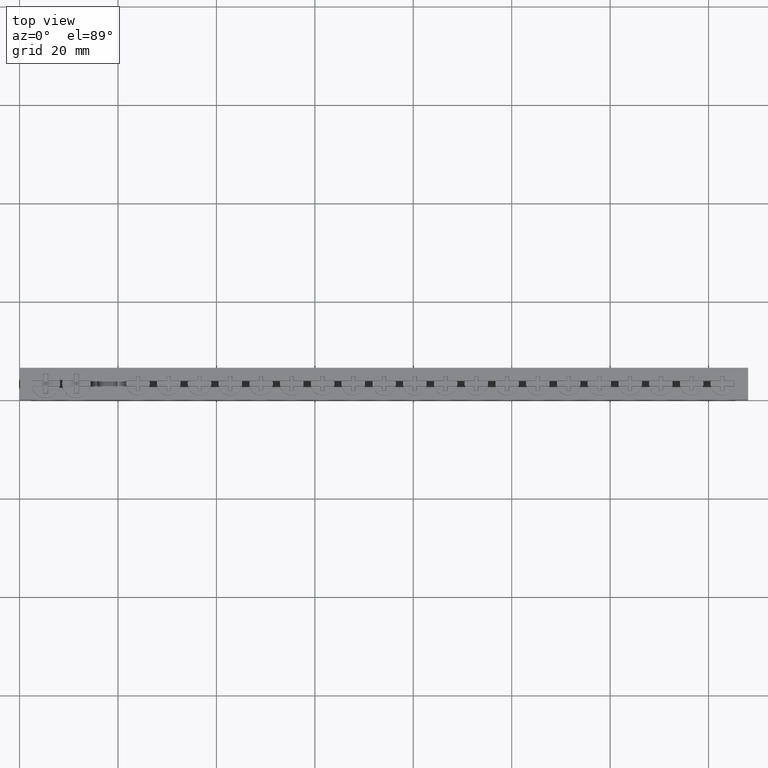
[diagram: clean part render]
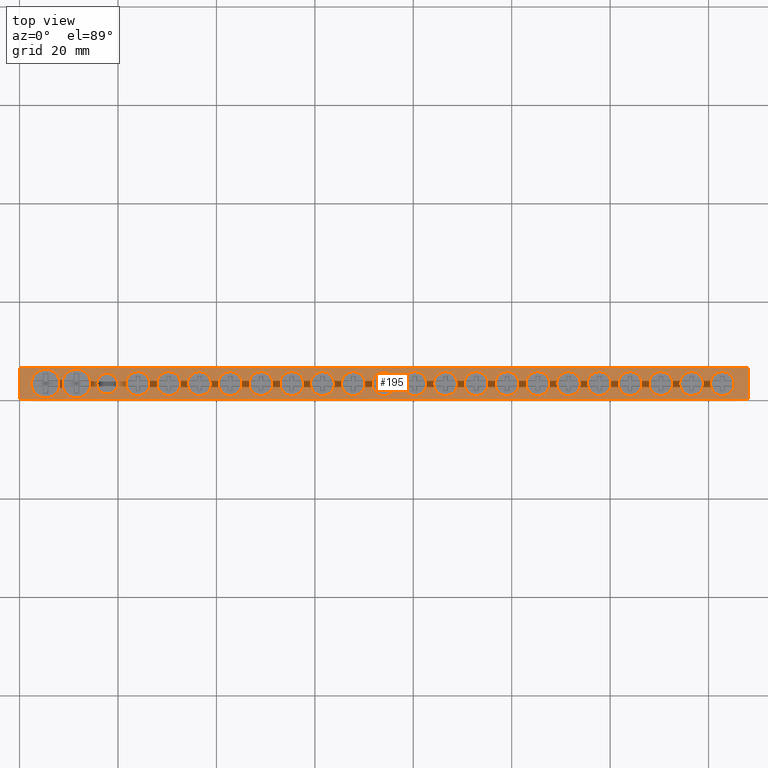
[diagram: same view with one face highlighted and labeled with its STEP entity id]
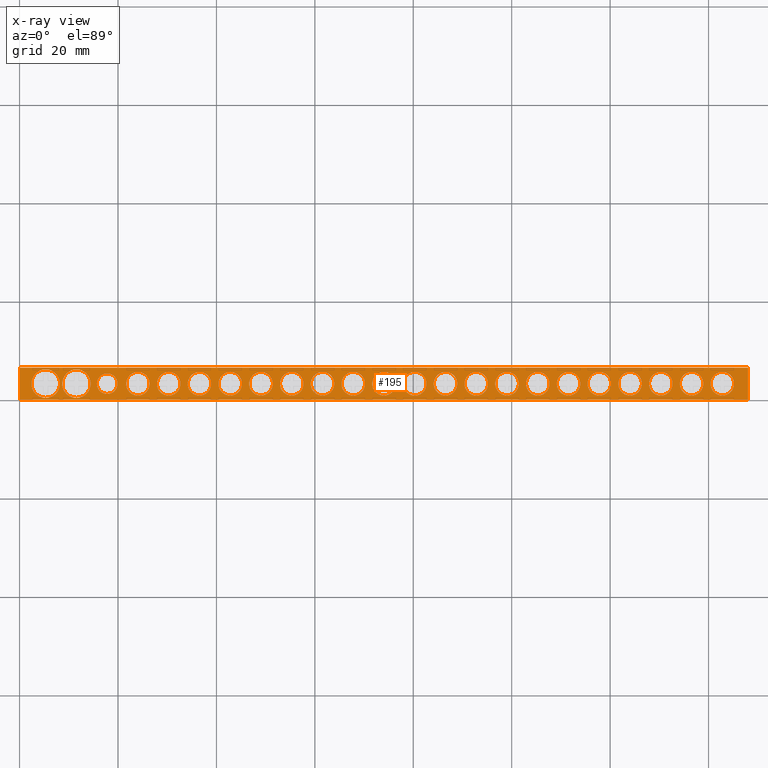
[diagram: x-ray of the same camera — body ghosted, the highlighted face saturated]
A machine part, top view. The second image highlights one B-rep face of the part: STEP entity #195.
The next image is the same camera in x-ray: the body ghosted, the highlighted face saturated — about 0% of this face is hidden behind the body in this view.
In plain terms, the highlighted planar face has unit normal (0, 0, -1).
Its self-contained STEP definition (entity closure, byte-faithful):
#92 = EDGE_CURVE ( 'NONE', #12310, #12314, #11470, .T. ) ;
#128 = EDGE_CURVE ( 'NONE', #12281, #12275, #11464, .T. ) ;
#138 = EDGE_CURVE ( 'NONE', #12275, #12310, #11525, .T. ) ;
#143 = EDGE_CURVE ( 'NONE', #12314, #12281, #11571, .T. ) ;
#195 = ADVANCED_FACE ( 'NONE', ( #11841, #11842, #11859, #11872, #11830, #11871, #11851, #11853, #11873, #11874, #11861, #11875, #11852, #11877, #11837, #11836, #11831, #11878, #11865, #11825, #11867, #11868, #11826, #11844 ), #11864, .F. ) ;
#748 = DIRECTION ( 'NONE',  ( 0.0000000000000000000, -1.000000000000000000, 0.0000000000000000000 ) ) ;
#750 = CARTESIAN_POINT ( 'NONE',  ( 124.0499999999999800, 3.249999999999996900, 9.000000000000001800 ) ) ;
#756 = DIRECTION ( 'NONE',  ( 6.245004513516505500E-017, -1.110223024625156500E-016, 1.000000000000000000 ) ) ;
#757 = DIRECTION ( 'NONE',  ( 0.0000000000000000000, -1.000000000000000000, 0.0000000000000000000 ) ) ;
#759 = DIRECTION ( 'NONE',  ( 0.0000000000000000000, -1.000000000000000000, 0.0000000000000000000 ) ) ;
#762 = DIRECTION ( 'NONE',  ( 0.0000000000000000000, -1.000000000000000000, 0.0000000000000000000 ) ) ;
#763 = CARTESIAN_POINT ( 'NONE',  ( 136.5499999999999800, 3.249999999999996900, 9.000000000000001800 ) ) ;
#771 = DIRECTION ( 'NONE',  ( 0.0000000000000000000, 6.938893903907225300E-018, 1.000000000000000000 ) ) ;
#772 = DIRECTION ( 'NONE',  ( 0.0000000000000000000, 6.938893903907225300E-018, 1.000000000000000000 ) ) ;
#773 = DIRECTION ( 'NONE',  ( 0.0000000000000000000, 6.938893903907225300E-018, 1.000000000000000000 ) ) ;
#776 = CARTESIAN_POINT ( 'NONE',  ( 11.55000000000000200, 3.249999999999999600, 9.000000000000001800 ) ) ;
#782 = CARTESIAN_POINT ( 'NONE',  ( 74.04999999999999700, 3.249999999999996400, 9.000000000000001800 ) ) ;
#787 = CARTESIAN_POINT ( 'NONE',  ( 142.7999999999999800, 3.249999999999996900, 9.000000000000001800 ) ) ;
#791 = DIRECTION ( 'NONE',  ( 0.0000000000000000000, -1.000000000000000000, 0.0000000000000000000 ) ) ;
#795 = DIRECTION ( 'NONE',  ( 0.0000000000000000000, -1.000000000000000000, 0.0000000000000000000 ) ) ;
#797 = CARTESIAN_POINT ( 'NONE',  ( 61.54999999999999000, 3.249999999999996400, 9.000000000000001800 ) ) ;
#804 = DIRECTION ( 'NONE',  ( 0.0000000000000000000, -1.000000000000000000, 0.0000000000000000000 ) ) ;
#805 = DIRECTION ( 'NONE',  ( 0.0000000000000000000, 6.938893903907225300E-018, 1.000000000000000000 ) ) ;
#807 = CARTESIAN_POINT ( 'NONE',  ( 67.79999999999996900, 3.249999999999996400, 9.000000000000001800 ) ) ;
#811 = CARTESIAN_POINT ( 'NONE',  ( 86.54999999999998300, 3.249999999999996400, 9.000000000000001800 ) ) ;
#812 = DIRECTION ( 'NONE',  ( 0.0000000000000000000, 6.938893903907225300E-018, 1.000000000000000000 ) ) ;
#813 = DIRECTION ( 'NONE',  ( 0.0000000000000000000, -1.000000000000000000, 0.0000000000000000000 ) ) ;
#817 = DIRECTION ( 'NONE',  ( 0.0000000000000000000, -1.000000000000000000, 0.0000000000000000000 ) ) ;
#819 = DIRECTION ( 'NONE',  ( 0.0000000000000000000, 6.938893903907225300E-018, 1.000000000000000000 ) ) ;
#820 = DIRECTION ( 'NONE',  ( 0.0000000000000000000, 6.938893903907225300E-018, 1.000000000000000000 ) ) ;
#822 = CARTESIAN_POINT ( 'NONE',  ( 30.29999999999997900, 3.249999999999996000, 9.000000000000001800 ) ) ;
#823 = DIRECTION ( 'NONE',  ( 0.0000000000000000000, 6.938893903907225300E-018, 1.000000000000000000 ) ) ;
#830 = DIRECTION ( 'NONE',  ( 0.0000000000000000000, 6.938893903907225300E-018, 1.000000000000000000 ) ) ;
#839 = CARTESIAN_POINT ( 'NONE',  ( 36.54999999999996900, 3.249999999999996400, 9.000000000000001800 ) ) ;
#842 = DIRECTION ( 'NONE',  ( 0.0000000000000000000, -1.000000000000000000, 0.0000000000000000000 ) ) ;
#867 = CARTESIAN_POINT ( 'NONE',  ( 130.3000000000000100, 3.249999999999996900, 9.000000000000001800 ) ) ;
#869 = DIRECTION ( 'NONE',  ( 0.0000000000000000000, -1.000000000000000000, 0.0000000000000000000 ) ) ;
#870 = CARTESIAN_POINT ( 'NONE',  ( 111.5499999999999800, 3.249999999999996900, 9.000000000000001800 ) ) ;
#872 = CARTESIAN_POINT ( 'NONE',  ( 99.04999999999996900, 3.249999999999996400, 9.000000000000001800 ) ) ;
#873 = DIRECTION ( 'NONE',  ( 0.0000000000000000000, 6.938893903907225300E-018, 1.000000000000000000 ) ) ;
#875 = DIRECTION ( 'NONE',  ( 0.0000000000000000000, -1.000000000000000000, 0.0000000000000000000 ) ) ;
#876 = DIRECTION ( 'NONE',  ( 0.0000000000000000000, -1.000000000000000000, 0.0000000000000000000 ) ) ;
#877 = DIRECTION ( 'NONE',  ( 0.0000000000000000000, -1.000000000000000000, 0.0000000000000000000 ) ) ;
#878 = CARTESIAN_POINT ( 'NONE',  ( 55.29999999999997600, 3.249999999999996400, 9.000000000000001800 ) ) ;
#879 = DIRECTION ( 'NONE',  ( 6.245004513516505500E-017, -1.110223024625156500E-016, 1.000000000000000000 ) ) ;
#882 = DIRECTION ( 'NONE',  ( 0.0000000000000000000, -1.000000000000000000, 0.0000000000000000000 ) ) ;
#883 = DIRECTION ( 'NONE',  ( 0.0000000000000000000, 6.938893903907225300E-018, 1.000000000000000000 ) ) ;
#884 = CARTESIAN_POINT ( 'NONE',  ( 5.300000000000002500, 3.249999999999999600, 9.000000000000001800 ) ) ;
#885 = DIRECTION ( 'NONE',  ( 0.0000000000000000000, 6.938893903907225300E-018, 1.000000000000000000 ) ) ;
#887 = CARTESIAN_POINT ( 'NONE',  ( 42.79999999999997600, 3.249999999999996400, 9.000000000000001800 ) ) ;
#890 = DIRECTION ( 'NONE',  ( 0.0000000000000000000, 6.938893903907225300E-018, 1.000000000000000000 ) ) ;
#893 = DIRECTION ( 'NONE',  ( 0.0000000000000000000, -1.000000000000000000, 0.0000000000000000000 ) ) ;
#894 = DIRECTION ( 'NONE',  ( 0.0000000000000000000, 6.938893903907225300E-018, 1.000000000000000000 ) ) ;
#906 = DIRECTION ( 'NONE',  ( 0.0000000000000000000, 6.938893903907225300E-018, 1.000000000000000000 ) ) ;
#914 = DIRECTION ( 'NONE',  ( 0.0000000000000000000, 6.938893903907225300E-018, 1.000000000000000000 ) ) ;
#916 = DIRECTION ( 'NONE',  ( 0.0000000000000000000, -1.000000000000000000, 0.0000000000000000000 ) ) ;
#918 = DIRECTION ( 'NONE',  ( 0.0000000000000000000, -1.000000000000000000, 0.0000000000000000000 ) ) ;
#920 = DIRECTION ( 'NONE',  ( 0.0000000000000000000, 6.938893903907225300E-018, 1.000000000000000000 ) ) ;
#922 = DIRECTION ( 'NONE',  ( 0.0000000000000000000, -1.000000000000000000, 0.0000000000000000000 ) ) ;
#924 = CARTESIAN_POINT ( 'NONE',  ( 105.3000000000000000, 3.249999999999996400, 9.000000000000001800 ) ) ;
#925 = DIRECTION ( 'NONE',  ( 0.0000000000000000000, 6.938893903907225300E-018, 1.000000000000000000 ) ) ;
#927 = CARTESIAN_POINT ( 'NONE',  ( 80.29999999999998300, 3.249999999999996400, 9.000000000000001800 ) ) ;
#930 = CARTESIAN_POINT ( 'NONE',  ( 24.04999999999997900, 3.249999999999996000, 9.000000000000001800 ) ) ;
#933 = DIRECTION ( 'NONE',  ( 0.0000000000000000000, -1.000000000000000000, 0.0000000000000000000 ) ) ;
#936 = CARTESIAN_POINT ( 'NONE',  ( 117.7999999999999800, 3.249999999999996900, 9.000000000000001800 ) ) ;
#943 = DIRECTION ( 'NONE',  ( 0.0000000000000000000, -1.000000000000000000, 0.0000000000000000000 ) ) ;
#944 = DIRECTION ( 'NONE',  ( 0.0000000000000000000, 6.938893903907225300E-018, 1.000000000000000000 ) ) ;
#972 = CARTESIAN_POINT ( 'NONE',  ( 49.04999999999998300, 3.249999999999996400, 9.000000000000001800 ) ) ;
#1075 = CARTESIAN_POINT ( 'NONE',  ( 92.79999999999998300, 3.249999999999996400, 9.000000000000001800 ) ) ;
#1084 = DIRECTION ( 'NONE',  ( 0.0000000000000000000, -1.000000000000000000, 0.0000000000000000000 ) ) ;
#1095 = DIRECTION ( 'NONE',  ( 0.0000000000000000000, 6.938893903907225300E-018, 1.000000000000000000 ) ) ;
#1097 = CARTESIAN_POINT ( 'NONE',  ( 17.80000000000000100, 3.249999999999999100, 9.000000000000001800 ) ) ;
#1103 = DIRECTION ( 'NONE',  ( 0.0000000000000000000, 0.0000000000000000000, 1.000000000000000000 ) ) ;
#1114 = DIRECTION ( 'NONE',  ( 1.000000000000000000, 0.0000000000000000000, 0.0000000000000000000 ) ) ;
#1461 = CARTESIAN_POINT ( 'NONE',  ( 49.04999999999998300, 3.249999999999996400, 9.000000000000001800 ) ) ;
#1462 = DIRECTION ( 'NONE',  ( 0.0000000000000000000, -1.000000000000000000, 0.0000000000000000000 ) ) ;
#1474 = DIRECTION ( 'NONE',  ( 0.0000000000000000000, 6.938893903907225300E-018, 1.000000000000000000 ) ) ;
#1501 = DIRECTION ( 'NONE',  ( 0.0000000000000000000, -1.000000000000000000, 0.0000000000000000000 ) ) ;
#1513 = CARTESIAN_POINT ( 'NONE',  ( 55.29999999999997600, 3.249999999999996400, 9.000000000000001800 ) ) ;
#1518 = DIRECTION ( 'NONE',  ( 0.0000000000000000000, -1.000000000000000000, 0.0000000000000000000 ) ) ;
#1531 = CARTESIAN_POINT ( 'NONE',  ( 92.79999999999998300, 3.249999999999996400, 9.000000000000001800 ) ) ;
#1544 = DIRECTION ( 'NONE',  ( 0.0000000000000000000, 6.938893903907225300E-018, 1.000000000000000000 ) ) ;
#1549 = DIRECTION ( 'NONE',  ( 0.0000000000000000000, 6.938893903907225300E-018, 1.000000000000000000 ) ) ;
#1565 = CARTESIAN_POINT ( 'NONE',  ( 148.0500000000000100, 6.500000000000000000, 9.000000000000001800 ) ) ;
#1568 = DIRECTION ( 'NONE',  ( 0.0000000000000000000, 6.938893903907225300E-018, 1.000000000000000000 ) ) ;
#1571 = CARTESIAN_POINT ( 'NONE',  ( 67.79999999999996900, 3.249999999999996400, 9.000000000000001800 ) ) ;
#1580 = DIRECTION ( 'NONE',  ( 0.0000000000000000000, 6.938893903907225300E-018, 1.000000000000000000 ) ) ;
#1582 = DIRECTION ( 'NONE',  ( 0.0000000000000000000, -1.000000000000000000, 0.0000000000000000000 ) ) ;
#1586 = CARTESIAN_POINT ( 'NONE',  ( 0.05000000000000000300, 6.499999999999999100, 9.000000000000001800 ) ) ;
#1588 = CARTESIAN_POINT ( 'NONE',  ( 61.54999999999999000, 3.249999999999996400, 9.000000000000001800 ) ) ;
#1589 = DIRECTION ( 'NONE',  ( 0.0000000000000000000, -1.000000000000000000, 0.0000000000000000000 ) ) ;
#1609 = CARTESIAN_POINT ( 'NONE',  ( 130.3000000000000100, 0.8499999999999965400, 9.000000000000001800 ) ) ;
#1615 = CARTESIAN_POINT ( 'NONE',  ( 99.04999999999996900, 5.649999999999996800, 9.000000000000001800 ) ) ;
#1622 = CARTESIAN_POINT ( 'NONE',  ( 117.7999999999999800, 0.8499999999999965400, 9.000000000000001800 ) ) ;
#1627 = CARTESIAN_POINT ( 'NONE',  ( 99.04999999999996900, 0.8499999999999962000, 9.000000000000001800 ) ) ;
#1628 = CARTESIAN_POINT ( 'NONE',  ( 136.5499999999999800, 0.8499999999999965400, 9.000000000000001800 ) ) ;
#1637 = CARTESIAN_POINT ( 'NONE',  ( 148.0500000000000100, 0.0000000000000000000, 9.000000000000001800 ) ) ;
#1640 = CARTESIAN_POINT ( 'NONE',  ( 92.79999999999998300, 5.649999999999996800, 9.000000000000001800 ) ) ;
#1648 = CARTESIAN_POINT ( 'NONE',  ( 0.05000000000000000300, 0.0000000000000000000, 9.000000000000001800 ) ) ;
#1653 = CARTESIAN_POINT ( 'NONE',  ( 124.0499999999999800, 5.649999999999996800, 9.000000000000001800 ) ) ;
#1654 = CARTESIAN_POINT ( 'NONE',  ( 105.3000000000000000, 0.8499999999999962000, 9.000000000000001800 ) ) ;
#1664 = CARTESIAN_POINT ( 'NONE',  ( 124.0499999999999800, 0.8499999999999965400, 9.000000000000001800 ) ) ;
#1665 = CARTESIAN_POINT ( 'NONE',  ( 111.5499999999999800, 5.649999999999996800, 9.000000000000001800 ) ) ;
#1668 = CARTESIAN_POINT ( 'NONE',  ( 117.7999999999999800, 5.649999999999996800, 9.000000000000001800 ) ) ;
#1687 = CARTESIAN_POINT ( 'NONE',  ( 105.3000000000000000, 5.649999999999996800, 9.000000000000001800 ) ) ;
#1703 = CARTESIAN_POINT ( 'NONE',  ( 142.7999999999999800, 0.8499999999999965400, 9.000000000000001800 ) ) ;
#1706 = CARTESIAN_POINT ( 'NONE',  ( 15.69999999999999900, 3.249999999999999600, 9.000000000000001800 ) ) ;
#1713 = CARTESIAN_POINT ( 'NONE',  ( 130.3000000000000100, 5.649999999999996800, 9.000000000000001800 ) ) ;
#1716 = CARTESIAN_POINT ( 'NONE',  ( 111.5499999999999800, 0.8499999999999965400, 9.000000000000001800 ) ) ;
#1721 = CARTESIAN_POINT ( 'NONE',  ( 136.5499999999999800, 5.649999999999996800, 9.000000000000001800 ) ) ;
#1724 = CARTESIAN_POINT ( 'NONE',  ( 19.90000000000000200, 3.249999999999999100, 9.000000000000001800 ) ) ;
#1726 = CARTESIAN_POINT ( 'NONE',  ( 92.79999999999998300, 0.8499999999999962000, 9.000000000000001800 ) ) ;
#1792 = CARTESIAN_POINT ( 'NONE',  ( 142.7999999999999800, 5.649999999999996800, 9.000000000000001800 ) ) ;
#2612 = EDGE_LOOP ( 'NONE', ( #7861, #7875 ) ) ;
#2613 = EDGE_LOOP ( 'NONE', ( #7825, #7790 ) ) ;
#2617 = EDGE_LOOP ( 'NONE', ( #7863, #7756 ) ) ;
#2619 = EDGE_LOOP ( 'NONE', ( #7840, #7814 ) ) ;
#2620 = EDGE_LOOP ( 'NONE', ( #7759, #7767 ) ) ;
#2624 = EDGE_LOOP ( 'NONE', ( #7811, #7799 ) ) ;
#2629 = EDGE_LOOP ( 'NONE', ( #7804, #7793 ) ) ;
#2635 = EDGE_LOOP ( 'NONE', ( #7770, #7784 ) ) ;
#2651 = EDGE_LOOP ( 'NONE', ( #9114, #7800 ) ) ;
#2664 = EDGE_LOOP ( 'NONE', ( #9100, #9094 ) ) ;
#2666 = EDGE_LOOP ( 'NONE', ( #9104, #7791 ) ) ;
#2672 = EDGE_LOOP ( 'NONE', ( #7751, #7766 ) ) ;
#2675 = EDGE_LOOP ( 'NONE', ( #7860, #7850 ) ) ;
#2684 = EDGE_LOOP ( 'NONE', ( #7762, #7782 ) ) ;
#2688 = EDGE_LOOP ( 'NONE', ( #9091, #7797 ) ) ;
#2706 = EDGE_LOOP ( 'NONE', ( #7829, #7801 ) ) ;
#2707 = EDGE_LOOP ( 'NONE', ( #7877, #7831 ) ) ;
#2710 = EDGE_LOOP ( 'NONE', ( #7803, #7763 ) ) ;
#2711 = EDGE_LOOP ( 'NONE', ( #7777, #7778 ) ) ;
#2712 = EDGE_LOOP ( 'NONE', ( #7776, #7764 ) ) ;
#2718 = EDGE_LOOP ( 'NONE', ( #7765, #7806 ) ) ;
#2719 = EDGE_LOOP ( 'NONE', ( #7856, #7873, #7854, #7788 ) ) ;
#2720 = EDGE_LOOP ( 'NONE', ( #7802, #7851 ) ) ;
#2725 = EDGE_LOOP ( 'NONE', ( #7813, #9099 ) ) ;
#3057 = EDGE_CURVE ( 'NONE', #8642, #8627, #7369, .T. ) ;
#3063 = EDGE_CURVE ( 'NONE', #8544, #8638, #7417, .T. ) ;
#3955 = CARTESIAN_POINT ( 'NONE',  ( 5.300000000000002500, 3.249999999999999600, 9.000000000000001800 ) ) ;
#3964 = DIRECTION ( 'NONE',  ( 0.0000000000000000000, -1.000000000000000000, 0.0000000000000000000 ) ) ;
#3977 = DIRECTION ( 'NONE',  ( 6.245004513516505500E-017, -1.110223024625156500E-016, 1.000000000000000000 ) ) ;
#3979 = DIRECTION ( 'NONE',  ( 0.0000000000000000000, -1.000000000000000000, 0.0000000000000000000 ) ) ;
#3986 = DIRECTION ( 'NONE',  ( 0.0000000000000000000, 6.938893903907225300E-018, 1.000000000000000000 ) ) ;
#4000 = CARTESIAN_POINT ( 'NONE',  ( 24.04999999999997900, 3.249999999999996000, 9.000000000000001800 ) ) ;
#4858 = DIRECTION ( 'NONE',  ( 0.0000000000000000000, -1.000000000000000000, 0.0000000000000000000 ) ) ;
#4860 = DIRECTION ( 'NONE',  ( 0.0000000000000000000, 6.938893903907225300E-018, 1.000000000000000000 ) ) ;
#4869 = DIRECTION ( 'NONE',  ( 0.0000000000000000000, 6.938893903907225300E-018, 1.000000000000000000 ) ) ;
#4877 = DIRECTION ( 'NONE',  ( 0.0000000000000000000, -1.000000000000000000, 0.0000000000000000000 ) ) ;
#4888 = CARTESIAN_POINT ( 'NONE',  ( 30.29999999999997900, 3.249999999999996000, 9.000000000000001800 ) ) ;
#4892 = CARTESIAN_POINT ( 'NONE',  ( 36.54999999999996900, 3.249999999999996400, 9.000000000000001800 ) ) ;
#4905 = CARTESIAN_POINT ( 'NONE',  ( 17.80000000000000100, 3.249999999999999100, 9.000000000000001800 ) ) ;
#4911 = DIRECTION ( 'NONE',  ( 1.000000000000000000, 0.0000000000000000000, 0.0000000000000000000 ) ) ;
#4945 = DIRECTION ( 'NONE',  ( 0.0000000000000000000, 0.0000000000000000000, 1.000000000000000000 ) ) ;
#5106 = CIRCLE ( 'NONE', #5119, 2.400000000000000400 ) ;
#5119 = AXIS2_PLACEMENT_3D ( 'NONE', #1075, #1095, #1084 ) ;
#5134 = CIRCLE ( 'NONE', #5135, 2.100000000000001000 ) ;
#5135 = AXIS2_PLACEMENT_3D ( 'NONE', #1097, #1103, #1114 ) ;
#5167 = AXIS2_PLACEMENT_3D ( 'NONE', #4000, #3986, #3979 ) ;
#5178 = CIRCLE ( 'NONE', #5204, 2.900000000000000400 ) ;
#5179 = CIRCLE ( 'NONE', #5167, 2.400000000000000400 ) ;
#5204 = AXIS2_PLACEMENT_3D ( 'NONE', #3955, #3977, #3964 ) ;
#5534 = CIRCLE ( 'NONE', #5565, 2.400000000000000400 ) ;
#5537 = CIRCLE ( 'NONE', #5544, 2.400000000000000400 ) ;
#5542 = CIRCLE ( 'NONE', #5555, 2.400000000000000400 ) ;
#5544 = AXIS2_PLACEMENT_3D ( 'NONE', #1461, #1474, #1462 ) ;
#5545 = AXIS2_PLACEMENT_3D ( 'NONE', #1588, #1580, #1582 ) ;
#5551 = CIRCLE ( 'NONE', #5563, 2.400000000000000400 ) ;
#5555 = AXIS2_PLACEMENT_3D ( 'NONE', #1531, #1549, #1501 ) ;
#5560 = CIRCLE ( 'NONE', #5545, 2.400000000000000400 ) ;
#5563 = AXIS2_PLACEMENT_3D ( 'NONE', #1513, #1544, #1518 ) ;
#5565 = AXIS2_PLACEMENT_3D ( 'NONE', #1571, #1568, #1589 ) ;
#5998 = AXIS2_PLACEMENT_3D ( 'NONE', #884, #879, #876 ) ;
#5999 = CIRCLE ( 'NONE', #6041, 2.400000000000000400 ) ;
#6000 = CIRCLE ( 'NONE', #6009, 2.400000000000000400 ) ;
#6002 = CIRCLE ( 'NONE', #5998, 2.900000000000000400 ) ;
#6004 = AXIS2_PLACEMENT_3D ( 'NONE', #867, #873, #893 ) ;
#6005 = CIRCLE ( 'NONE', #6047, 2.400000000000000400 ) ;
#6006 = AXIS2_PLACEMENT_3D ( 'NONE', #936, #914, #933 ) ;
#6009 = AXIS2_PLACEMENT_3D ( 'NONE', #887, #885, #877 ) ;
#6014 = CIRCLE ( 'NONE', #6046, 2.400000000000000400 ) ;
#6023 = CIRCLE ( 'NONE', #6006, 2.400000000000000400 ) ;
#6025 = AXIS2_PLACEMENT_3D ( 'NONE', #927, #920, #922 ) ;
#6026 = CIRCLE ( 'NONE', #6028, 2.400000000000000400 ) ;
#6027 = CIRCLE ( 'NONE', #6004, 2.400000000000000400 ) ;
#6028 = AXIS2_PLACEMENT_3D ( 'NONE', #930, #906, #918 ) ;
#6039 = CIRCLE ( 'NONE', #6090, 2.400000000000000400 ) ;
#6041 = AXIS2_PLACEMENT_3D ( 'NONE', #870, #890, #869 ) ;
#6043 = AXIS2_PLACEMENT_3D ( 'NONE', #872, #894, #875 ) ;
#6044 = CIRCLE ( 'NONE', #6043, 2.400000000000000400 ) ;
#6045 = CIRCLE ( 'NONE', #6025, 2.400000000000000400 ) ;
#6046 = AXIS2_PLACEMENT_3D ( 'NONE', #839, #830, #842 ) ;
#6047 = AXIS2_PLACEMENT_3D ( 'NONE', #878, #883, #882 ) ;
#6051 = CIRCLE ( 'NONE', #6052, 2.400000000000000400 ) ;
#6052 = AXIS2_PLACEMENT_3D ( 'NONE', #924, #925, #916 ) ;
#6090 = AXIS2_PLACEMENT_3D ( 'NONE', #972, #944, #943 ) ;
#6471 = AXIS2_PLACEMENT_3D ( 'NONE', #822, #805, #791 ) ;
#6476 = CIRCLE ( 'NONE', #6521, 2.400000000000000400 ) ;
#6483 = AXIS2_PLACEMENT_3D ( 'NONE', #807, #823, #817 ) ;
#6484 = AXIS2_PLACEMENT_3D ( 'NONE', #782, #771, #748 ) ;
#6489 = CIRCLE ( 'NONE', #6471, 2.400000000000000400 ) ;
#6490 = CIRCLE ( 'NONE', #6511, 2.400000000000000400 ) ;
#6491 = CIRCLE ( 'NONE', #6484, 2.400000000000000400 ) ;
#6495 = CIRCLE ( 'NONE', #6496, 2.400000000000000400 ) ;
#6496 = AXIS2_PLACEMENT_3D ( 'NONE', #811, #812, #813 ) ;
#6505 = CIRCLE ( 'NONE', #6525, 2.900000000000000400 ) ;
#6506 = CIRCLE ( 'NONE', #6509, 2.400000000000000400 ) ;
#6509 = AXIS2_PLACEMENT_3D ( 'NONE', #787, #819, #795 ) ;
#6511 = AXIS2_PLACEMENT_3D ( 'NONE', #763, #773, #759 ) ;
#6515 = AXIS2_PLACEMENT_3D ( 'NONE', #797, #820, #804 ) ;
#6519 = CIRCLE ( 'NONE', #6515, 2.400000000000000400 ) ;
#6521 = AXIS2_PLACEMENT_3D ( 'NONE', #750, #772, #762 ) ;
#6524 = CIRCLE ( 'NONE', #6483, 2.400000000000000400 ) ;
#6525 = AXIS2_PLACEMENT_3D ( 'NONE', #776, #756, #757 ) ;
#6542 = EDGE_CURVE ( 'NONE', #12392, #12390, #7420, .T. ) ;
#6595 = EDGE_CURVE ( 'NONE', #12345, #12339, #7463, .T. ) ;
#6596 = EDGE_CURVE ( 'NONE', #12369, #12332, #7467, .T. ) ;
#6600 = EDGE_CURVE ( 'NONE', #12309, #12362, #7494, .T. ) ;
#6603 = EDGE_CURVE ( 'NONE', #12335, #12320, #7502, .T. ) ;
#6606 = EDGE_CURVE ( 'NONE', #12342, #12396, #7484, .T. ) ;
#6627 = EDGE_CURVE ( 'NONE', #12330, #12307, #7352, .T. ) ;
#6628 = EDGE_CURVE ( 'NONE', #12336, #12360, #7410, .T. ) ;
#6652 = EDGE_CURVE ( 'NONE', #12378, #12412, #13613, .T. ) ;
#6674 = EDGE_CURVE ( 'NONE', #8640, #8539, #13681, .T. ) ;
#6698 = DIRECTION ( 'NONE',  ( 0.0000000000000000000, 6.938893903907225300E-018, 1.000000000000000000 ) ) ;
#6700 = CARTESIAN_POINT ( 'NONE',  ( 99.04999999999996900, 3.249999999999996400, 9.000000000000001800 ) ) ;
#6703 = DIRECTION ( 'NONE',  ( 0.0000000000000000000, -1.000000000000000000, 0.0000000000000000000 ) ) ;
#6704 = DIRECTION ( 'NONE',  ( 0.0000000000000000000, -1.000000000000000000, 0.0000000000000000000 ) ) ;
#6706 = DIRECTION ( 'NONE',  ( 0.0000000000000000000, 6.938893903907225300E-018, 1.000000000000000000 ) ) ;
#6708 = CARTESIAN_POINT ( 'NONE',  ( 111.5499999999999800, 3.249999999999996900, 9.000000000000001800 ) ) ;
#6717 = DIRECTION ( 'NONE',  ( 0.0000000000000000000, 6.938893903907225300E-018, 1.000000000000000000 ) ) ;
#6722 = DIRECTION ( 'NONE',  ( 0.0000000000000000000, 6.938893903907225300E-018, 1.000000000000000000 ) ) ;
#6723 = DIRECTION ( 'NONE',  ( 0.0000000000000000000, -1.000000000000000000, 0.0000000000000000000 ) ) ;
#6728 = CARTESIAN_POINT ( 'NONE',  ( 117.7999999999999800, 3.249999999999996900, 9.000000000000001800 ) ) ;
#6730 = DIRECTION ( 'NONE',  ( 0.0000000000000000000, -1.000000000000000000, 0.0000000000000000000 ) ) ;
#6731 = CARTESIAN_POINT ( 'NONE',  ( 136.5499999999999800, 3.249999999999996900, 9.000000000000001800 ) ) ;
#6733 = DIRECTION ( 'NONE',  ( 0.0000000000000000000, -1.000000000000000000, 0.0000000000000000000 ) ) ;
#6741 = CARTESIAN_POINT ( 'NONE',  ( 105.3000000000000000, 3.249999999999996400, 9.000000000000001800 ) ) ;
#6742 = DIRECTION ( 'NONE',  ( 0.0000000000000000000, 6.938893903907225300E-018, 1.000000000000000000 ) ) ;
#6810 = DIRECTION ( 'NONE',  ( 0.0000000000000000000, 6.938893903907225300E-018, 1.000000000000000000 ) ) ;
#6813 = DIRECTION ( 'NONE',  ( 0.0000000000000000000, -1.000000000000000000, 0.0000000000000000000 ) ) ;
#6824 = DIRECTION ( 'NONE',  ( 0.0000000000000000000, 6.938893903907225300E-018, 1.000000000000000000 ) ) ;
#6830 = CARTESIAN_POINT ( 'NONE',  ( 130.3000000000000100, 3.249999999999996900, 9.000000000000001800 ) ) ;
#6833 = CARTESIAN_POINT ( 'NONE',  ( 124.0499999999999800, 3.249999999999996900, 9.000000000000001800 ) ) ;
#6835 = DIRECTION ( 'NONE',  ( 0.0000000000000000000, -1.000000000000000000, 0.0000000000000000000 ) ) ;
#6887 = CARTESIAN_POINT ( 'NONE',  ( 142.7999999999999800, 3.249999999999996900, 9.000000000000001800 ) ) ;
#6888 = DIRECTION ( 'NONE',  ( 0.0000000000000000000, -1.000000000000000000, 0.0000000000000000000 ) ) ;
#6915 = DIRECTION ( 'NONE',  ( 0.0000000000000000000, 6.938893903907225300E-018, 1.000000000000000000 ) ) ;
#6940 = DIRECTION ( 'NONE',  ( 6.245004513516505500E-017, -1.110223024625156500E-016, 1.000000000000000000 ) ) ;
#6942 = DIRECTION ( 'NONE',  ( 0.0000000000000000000, -1.000000000000000000, 0.0000000000000000000 ) ) ;
#6959 = CARTESIAN_POINT ( 'NONE',  ( 11.55000000000000200, 3.249999999999999600, 9.000000000000001800 ) ) ;
#6970 = CARTESIAN_POINT ( 'NONE',  ( 80.29999999999998300, 3.249999999999996400, 9.000000000000001800 ) ) ;
#6971 = DIRECTION ( 'NONE',  ( 0.0000000000000000000, 6.938893903907225300E-018, 1.000000000000000000 ) ) ;
#6980 = DIRECTION ( 'NONE',  ( 0.0000000000000000000, -1.000000000000000000, 0.0000000000000000000 ) ) ;
#7050 = DIRECTION ( 'NONE',  ( 0.0000000000000000000, -1.000000000000000000, 0.0000000000000000000 ) ) ;
#7053 = CARTESIAN_POINT ( 'NONE',  ( 74.04999999999999700, 3.249999999999996400, 9.000000000000001800 ) ) ;
#7062 = DIRECTION ( 'NONE',  ( 0.0000000000000000000, 6.938893903907225300E-018, 1.000000000000000000 ) ) ;
#7108 = DIRECTION ( 'NONE',  ( 0.0000000000000000000, -1.000000000000000000, 0.0000000000000000000 ) ) ;
#7128 = DIRECTION ( 'NONE',  ( 0.0000000000000000000, 6.938893903907225300E-018, 1.000000000000000000 ) ) ;
#7133 = CARTESIAN_POINT ( 'NONE',  ( 86.54999999999998300, 3.249999999999996400, 9.000000000000001800 ) ) ;
#7213 = AXIS2_PLACEMENT_3D ( 'NONE', #11838, #11827, #11843 ) ;
#7352 = CIRCLE ( 'NONE', #7356, 2.400000000000000400 ) ;
#7356 = AXIS2_PLACEMENT_3D ( 'NONE', #6833, #6824, #6835 ) ;
#7369 = CIRCLE ( 'NONE', #7416, 2.400000000000000400 ) ;
#7405 = AXIS2_PLACEMENT_3D ( 'NONE', #4905, #4945, #4911 ) ;
#7410 = CIRCLE ( 'NONE', #7495, 2.400000000000000400 ) ;
#7415 = AXIS2_PLACEMENT_3D ( 'NONE', #4888, #4869, #4877 ) ;
#7416 = AXIS2_PLACEMENT_3D ( 'NONE', #4892, #4860, #4858 ) ;
#7417 = CIRCLE ( 'NONE', #7415, 2.400000000000000400 ) ;
#7420 = CIRCLE ( 'NONE', #7405, 2.100000000000001000 ) ;
#7463 = CIRCLE ( 'NONE', #7491, 2.400000000000000400 ) ;
#7465 = AXIS2_PLACEMENT_3D ( 'NONE', #6741, #6722, #6733 ) ;
#7467 = CIRCLE ( 'NONE', #7505, 2.400000000000000400 ) ;
#7484 = CIRCLE ( 'NONE', #7496, 2.400000000000000400 ) ;
#7491 = AXIS2_PLACEMENT_3D ( 'NONE', #6700, #6706, #6704 ) ;
#7494 = CIRCLE ( 'NONE', #7465, 2.400000000000000400 ) ;
#7495 = AXIS2_PLACEMENT_3D ( 'NONE', #6830, #6810, #6813 ) ;
#7496 = AXIS2_PLACEMENT_3D ( 'NONE', #6731, #6742, #6730 ) ;
#7497 = AXIS2_PLACEMENT_3D ( 'NONE', #6728, #6717, #6723 ) ;
#7502 = CIRCLE ( 'NONE', #7497, 2.400000000000000400 ) ;
#7505 = AXIS2_PLACEMENT_3D ( 'NONE', #6708, #6698, #6703 ) ;
#7531 = VECTOR ( 'NONE', #11545, 1000.000000000000000 ) ;
#7566 = VECTOR ( 'NONE', #11450, 1000.000000000000000 ) ;
#7567 = VECTOR ( 'NONE', #11522, 1000.000000000000000 ) ;
#7585 = VECTOR ( 'NONE', #11496, 1000.000000000000000 ) ;
#7599 = EDGE_CURVE ( 'NONE', #8613, #8679, #13748, .T. ) ;
#7614 = EDGE_CURVE ( 'NONE', #8612, #8581, #13709, .T. ) ;
#7628 = EDGE_CURVE ( 'NONE', #8629, #8619, #13809, .T. ) ;
#7652 = EDGE_CURVE ( 'NONE', #8608, #8630, #13757, .T. ) ;
#7751 = ORIENTED_EDGE ( 'NONE', *, *, #7652, .F. ) ;
#7756 = ORIENTED_EDGE ( 'NONE', *, *, #10201, .F. ) ;
#7759 = ORIENTED_EDGE ( 'NONE', *, *, #6595, .F. ) ;
#7762 = ORIENTED_EDGE ( 'NONE', *, *, #3057, .F. ) ;
#7763 = ORIENTED_EDGE ( 'NONE', *, *, #10248, .F. ) ;
#7764 = ORIENTED_EDGE ( 'NONE', *, *, #10221, .F. ) ;
#7765 = ORIENTED_EDGE ( 'NONE', *, *, #11244, .F. ) ;
#7766 = ORIENTED_EDGE ( 'NONE', *, *, #10241, .F. ) ;
#7767 = ORIENTED_EDGE ( 'NONE', *, *, #10244, .F. ) ;
#7770 = ORIENTED_EDGE ( 'NONE', *, *, #11232, .F. ) ;
#7776 = ORIENTED_EDGE ( 'NONE', *, *, #11246, .F. ) ;
#7777 = ORIENTED_EDGE ( 'NONE', *, *, #11250, .F. ) ;
#7778 = ORIENTED_EDGE ( 'NONE', *, *, #10213, .F. ) ;
#7782 = ORIENTED_EDGE ( 'NONE', *, *, #10235, .F. ) ;
#7784 = ORIENTED_EDGE ( 'NONE', *, *, #10264, .F. ) ;
#7788 = ORIENTED_EDGE ( 'NONE', *, *, #138, .T. ) ;
#7790 = ORIENTED_EDGE ( 'NONE', *, *, #10256, .F. ) ;
#7791 = ORIENTED_EDGE ( 'NONE', *, *, #10207, .F. ) ;
#7793 = ORIENTED_EDGE ( 'NONE', *, *, #10255, .F. ) ;
#7797 = ORIENTED_EDGE ( 'NONE', *, *, #10254, .F. ) ;
#7799 = ORIENTED_EDGE ( 'NONE', *, *, #10238, .F. ) ;
#7800 = ORIENTED_EDGE ( 'NONE', *, *, #10212, .F. ) ;
#7801 = ORIENTED_EDGE ( 'NONE', *, *, #10249, .F. ) ;
#7802 = ORIENTED_EDGE ( 'NONE', *, *, #10305, .F. ) ;
#7803 = ORIENTED_EDGE ( 'NONE', *, *, #11240, .F. ) ;
#7804 = ORIENTED_EDGE ( 'NONE', *, *, #10351, .F. ) ;
#7806 = ORIENTED_EDGE ( 'NONE', *, *, #10306, .F. ) ;
#7811 = ORIENTED_EDGE ( 'NONE', *, *, #10352, .F. ) ;
#7813 = ORIENTED_EDGE ( 'NONE', *, *, #7614, .F. ) ;
#7814 = ORIENTED_EDGE ( 'NONE', *, *, #10240, .F. ) ;
#7825 = ORIENTED_EDGE ( 'NONE', *, *, #6600, .F. ) ;
#7829 = ORIENTED_EDGE ( 'NONE', *, *, #6603, .F. ) ;
#7831 = ORIENTED_EDGE ( 'NONE', *, *, #10243, .F. ) ;
#7840 = ORIENTED_EDGE ( 'NONE', *, *, #6628, .F. ) ;
#7850 = ORIENTED_EDGE ( 'NONE', *, *, #10219, .F. ) ;
#7851 = ORIENTED_EDGE ( 'NONE', *, *, #6542, .F. ) ;
#7854 = ORIENTED_EDGE ( 'NONE', *, *, #128, .T. ) ;
#7856 = ORIENTED_EDGE ( 'NONE', *, *, #92, .T. ) ;
#7860 = ORIENTED_EDGE ( 'NONE', *, *, #6652, .F. ) ;
#7861 = ORIENTED_EDGE ( 'NONE', *, *, #6606, .F. ) ;
#7863 = ORIENTED_EDGE ( 'NONE', *, *, #6627, .F. ) ;
#7873 = ORIENTED_EDGE ( 'NONE', *, *, #143, .T. ) ;
#7875 = ORIENTED_EDGE ( 'NONE', *, *, #10204, .F. ) ;
#7877 = ORIENTED_EDGE ( 'NONE', *, *, #6596, .F. ) ;
#8518 = VERTEX_POINT ( 'NONE', #10763 ) ;
#8539 = VERTEX_POINT ( 'NONE', #10721 ) ;
#8544 = VERTEX_POINT ( 'NONE', #10731 ) ;
#8550 = VERTEX_POINT ( 'NONE', #10711 ) ;
#8581 = VERTEX_POINT ( 'NONE', #9355 ) ;
#8584 = VERTEX_POINT ( 'NONE', #9358 ) ;
#8596 = VERTEX_POINT ( 'NONE', #9402 ) ;
#8605 = VERTEX_POINT ( 'NONE', #9414 ) ;
#8607 = VERTEX_POINT ( 'NONE', #9415 ) ;
#8608 = VERTEX_POINT ( 'NONE', #9386 ) ;
#8611 = VERTEX_POINT ( 'NONE', #9419 ) ;
#8612 = VERTEX_POINT ( 'NONE', #9420 ) ;
#8613 = VERTEX_POINT ( 'NONE', #9375 ) ;
#8616 = VERTEX_POINT ( 'NONE', #9424 ) ;
#8619 = VERTEX_POINT ( 'NONE', #9393 ) ;
#8622 = VERTEX_POINT ( 'NONE', #9431 ) ;
#8623 = VERTEX_POINT ( 'NONE', #9416 ) ;
#8627 = VERTEX_POINT ( 'NONE', #9397 ) ;
#8629 = VERTEX_POINT ( 'NONE', #9377 ) ;
#8630 = VERTEX_POINT ( 'NONE', #9388 ) ;
#8638 = VERTEX_POINT ( 'NONE', #9383 ) ;
#8640 = VERTEX_POINT ( 'NONE', #9384 ) ;
#8642 = VERTEX_POINT ( 'NONE', #9385 ) ;
#8679 = VERTEX_POINT ( 'NONE', #9448 ) ;
#8680 = VERTEX_POINT ( 'NONE', #9476 ) ;
#8692 = VERTEX_POINT ( 'NONE', #9475 ) ;
#9091 = ORIENTED_EDGE ( 'NONE', *, *, #7599, .F. ) ;
#9094 = ORIENTED_EDGE ( 'NONE', *, *, #10218, .F. ) ;
#9099 = ORIENTED_EDGE ( 'NONE', *, *, #10205, .F. ) ;
#9100 = ORIENTED_EDGE ( 'NONE', *, *, #7628, .F. ) ;
#9104 = ORIENTED_EDGE ( 'NONE', *, *, #6674, .F. ) ;
#9114 = ORIENTED_EDGE ( 'NONE', *, *, #3063, .F. ) ;
#9355 = CARTESIAN_POINT ( 'NONE',  ( 74.04999999999999700, 5.649999999999996800, 9.000000000000001800 ) ) ;
#9358 = CARTESIAN_POINT ( 'NONE',  ( 61.54999999999999000, 0.8499999999999962000, 9.000000000000001800 ) ) ;
#9375 = CARTESIAN_POINT ( 'NONE',  ( 80.29999999999998300, 0.8499999999999962000, 9.000000000000001800 ) ) ;
#9377 = CARTESIAN_POINT ( 'NONE',  ( 86.54999999999998300, 0.8499999999999962000, 9.000000000000001800 ) ) ;
#9383 = CARTESIAN_POINT ( 'NONE',  ( 30.29999999999997900, 5.649999999999995900, 9.000000000000001800 ) ) ;
#9384 = CARTESIAN_POINT ( 'NONE',  ( 11.55000000000000200, 0.3499999999999992000, 9.000000000000001800 ) ) ;
#9385 = CARTESIAN_POINT ( 'NONE',  ( 36.54999999999996900, 0.8499999999999962000, 9.000000000000001800 ) ) ;
#9386 = CARTESIAN_POINT ( 'NONE',  ( 42.79999999999997600, 0.8499999999999962000, 9.000000000000001800 ) ) ;
#9388 = CARTESIAN_POINT ( 'NONE',  ( 42.79999999999997600, 5.649999999999996800, 9.000000000000001800 ) ) ;
#9393 = CARTESIAN_POINT ( 'NONE',  ( 86.54999999999998300, 5.649999999999996800, 9.000000000000001800 ) ) ;
#9397 = CARTESIAN_POINT ( 'NONE',  ( 36.54999999999996900, 5.649999999999996800, 9.000000000000001800 ) ) ;
#9402 = CARTESIAN_POINT ( 'NONE',  ( 67.79999999999996900, 5.649999999999996800, 9.000000000000001800 ) ) ;
#9414 = CARTESIAN_POINT ( 'NONE',  ( 5.300000000000002500, 6.149999999999999500, 9.000000000000001800 ) ) ;
#9415 = CARTESIAN_POINT ( 'NONE',  ( 5.300000000000002500, 0.3499999999999992000, 9.000000000000001800 ) ) ;
#9416 = CARTESIAN_POINT ( 'NONE',  ( 61.54999999999999000, 5.649999999999996800, 9.000000000000001800 ) ) ;
#9419 = CARTESIAN_POINT ( 'NONE',  ( 67.79999999999996900, 0.8499999999999962000, 9.000000000000001800 ) ) ;
#9420 = CARTESIAN_POINT ( 'NONE',  ( 74.04999999999999700, 0.8499999999999962000, 9.000000000000001800 ) ) ;
#9424 = CARTESIAN_POINT ( 'NONE',  ( 55.29999999999997600, 0.8499999999999962000, 9.000000000000001800 ) ) ;
#9431 = CARTESIAN_POINT ( 'NONE',  ( 49.04999999999998300, 5.649999999999996800, 9.000000000000001800 ) ) ;
#9448 = CARTESIAN_POINT ( 'NONE',  ( 80.29999999999998300, 5.649999999999996800, 9.000000000000001800 ) ) ;
#9475 = CARTESIAN_POINT ( 'NONE',  ( 55.29999999999997600, 5.649999999999996800, 9.000000000000001800 ) ) ;
#9476 = CARTESIAN_POINT ( 'NONE',  ( 49.04999999999998300, 0.8499999999999962000, 9.000000000000001800 ) ) ;
#10201 = EDGE_CURVE ( 'NONE', #12307, #12330, #6476, .T. ) ;
#10204 = EDGE_CURVE ( 'NONE', #12396, #12342, #6490, .T. ) ;
#10205 = EDGE_CURVE ( 'NONE', #8581, #8612, #6491, .T. ) ;
#10207 = EDGE_CURVE ( 'NONE', #8539, #8640, #6505, .T. ) ;
#10212 = EDGE_CURVE ( 'NONE', #8638, #8544, #6489, .T. ) ;
#10213 = EDGE_CURVE ( 'NONE', #8596, #8611, #6524, .T. ) ;
#10218 = EDGE_CURVE ( 'NONE', #8619, #8629, #6495, .T. ) ;
#10219 = EDGE_CURVE ( 'NONE', #12412, #12378, #6506, .T. ) ;
#10221 = EDGE_CURVE ( 'NONE', #8623, #8584, #6519, .T. ) ;
#10235 = EDGE_CURVE ( 'NONE', #8627, #8642, #6014, .T. ) ;
#10238 = EDGE_CURVE ( 'NONE', #8605, #8607, #6002, .T. ) ;
#10240 = EDGE_CURVE ( 'NONE', #12360, #12336, #6027, .T. ) ;
#10241 = EDGE_CURVE ( 'NONE', #8630, #8608, #6000, .T. ) ;
#10243 = EDGE_CURVE ( 'NONE', #12332, #12369, #5999, .T. ) ;
#10244 = EDGE_CURVE ( 'NONE', #12339, #12345, #6044, .T. ) ;
#10248 = EDGE_CURVE ( 'NONE', #8692, #8616, #6005, .T. ) ;
#10249 = EDGE_CURVE ( 'NONE', #12320, #12335, #6023, .T. ) ;
#10254 = EDGE_CURVE ( 'NONE', #8679, #8613, #6045, .T. ) ;
#10255 = EDGE_CURVE ( 'NONE', #8550, #8518, #6026, .T. ) ;
#10256 = EDGE_CURVE ( 'NONE', #12362, #12309, #6051, .T. ) ;
#10264 = EDGE_CURVE ( 'NONE', #8622, #8680, #6039, .T. ) ;
#10305 = EDGE_CURVE ( 'NONE', #12390, #12392, #5134, .T. ) ;
#10306 = EDGE_CURVE ( 'NONE', #12318, #12404, #5106, .T. ) ;
#10351 = EDGE_CURVE ( 'NONE', #8518, #8550, #5179, .T. ) ;
#10352 = EDGE_CURVE ( 'NONE', #8607, #8605, #5178, .T. ) ;
#10711 = CARTESIAN_POINT ( 'NONE',  ( 24.04999999999997900, 5.649999999999995900, 9.000000000000001800 ) ) ;
#10721 = CARTESIAN_POINT ( 'NONE',  ( 11.55000000000000200, 6.149999999999999500, 9.000000000000001800 ) ) ;
#10731 = CARTESIAN_POINT ( 'NONE',  ( 30.29999999999997900, 0.8499999999999957600, 9.000000000000001800 ) ) ;
#10763 = CARTESIAN_POINT ( 'NONE',  ( 24.04999999999997900, 0.8499999999999957600, 9.000000000000001800 ) ) ;
#10776 = DIRECTION ( 'NONE',  ( 0.0000000000000000000, 6.938893903907225300E-018, 1.000000000000000000 ) ) ;
#10781 = DIRECTION ( 'NONE',  ( 0.0000000000000000000, -1.000000000000000000, 0.0000000000000000000 ) ) ;
#10795 = CARTESIAN_POINT ( 'NONE',  ( 42.79999999999997600, 3.249999999999996400, 9.000000000000001800 ) ) ;
#11232 = EDGE_CURVE ( 'NONE', #8680, #8622, #5537, .T. ) ;
#11240 = EDGE_CURVE ( 'NONE', #8616, #8692, #5551, .T. ) ;
#11244 = EDGE_CURVE ( 'NONE', #12404, #12318, #5542, .T. ) ;
#11246 = EDGE_CURVE ( 'NONE', #8584, #8623, #5560, .T. ) ;
#11250 = EDGE_CURVE ( 'NONE', #8611, #8596, #5534, .T. ) ;
#11450 = DIRECTION ( 'NONE',  ( 1.000000000000000000, 0.0000000000000000000, -0.0000000000000000000 ) ) ;
#11455 = CARTESIAN_POINT ( 'NONE',  ( 0.0000000000000000000, 0.0000000000000000000, 9.000000000000001800 ) ) ;
#11464 = LINE ( 'NONE', #11477, #7567 ) ;
#11470 = LINE ( 'NONE', #11455, #7566 ) ;
#11477 = CARTESIAN_POINT ( 'NONE',  ( 0.0000000000000000000, 6.499999999999999100, 9.000000000000001800 ) ) ;
#11481 = CARTESIAN_POINT ( 'NONE',  ( 0.05000000000000000300, 6.499999999999999100, 9.000000000000001800 ) ) ;
#11496 = DIRECTION ( 'NONE',  ( 0.0000000000000000000, -1.000000000000000000, 0.0000000000000000000 ) ) ;
#11522 = DIRECTION ( 'NONE',  ( -1.000000000000000000, -5.856595124837297000E-018, -0.0000000000000000000 ) ) ;
#11525 = LINE ( 'NONE', #11481, #7585 ) ;
#11534 = CARTESIAN_POINT ( 'NONE',  ( 148.0500000000000100, 6.499999999999999100, 9.000000000000001800 ) ) ;
#11545 = DIRECTION ( 'NONE',  ( 0.0000000000000000000, 1.000000000000000000, 0.0000000000000000000 ) ) ;
#11571 = LINE ( 'NONE', #11534, #7531 ) ;
#11825 = FACE_BOUND ( 'NONE', #2619, .T. ) ;
#11826 = FACE_OUTER_BOUND ( 'NONE', #2719, .T. ) ;
#11827 = DIRECTION ( 'NONE',  ( 0.0000000000000000000, 0.0000000000000000000, -1.000000000000000000 ) ) ;
#11830 = FACE_BOUND ( 'NONE', #2684, .T. ) ;
#11831 = FACE_BOUND ( 'NONE', #2707, .T. ) ;
#11836 = FACE_BOUND ( 'NONE', #2613, .T. ) ;
#11837 = FACE_BOUND ( 'NONE', #2620, .T. ) ;
#11838 = CARTESIAN_POINT ( 'NONE',  ( 0.0000000000000000000, 6.499999999999999100, 9.000000000000001800 ) ) ;
#11841 = FACE_BOUND ( 'NONE', #2624, .T. ) ;
#11842 = FACE_BOUND ( 'NONE', #2666, .T. ) ;
#11843 = DIRECTION ( 'NONE',  ( -1.000000000000000000, 0.0000000000000000000, -0.0000000000000000000 ) ) ;
#11844 = FACE_BOUND ( 'NONE', #2720, .T. ) ;
#11851 = FACE_BOUND ( 'NONE', #2635, .T. ) ;
#11852 = FACE_BOUND ( 'NONE', #2664, .T. ) ;
#11853 = FACE_BOUND ( 'NONE', #2710, .T. ) ;
#11859 = FACE_BOUND ( 'NONE', #2629, .T. ) ;
#11861 = FACE_BOUND ( 'NONE', #2725, .T. ) ;
#11864 = PLANE ( 'NONE',  #7213 ) ;
#11865 = FACE_BOUND ( 'NONE', #2617, .T. ) ;
#11867 = FACE_BOUND ( 'NONE', #2612, .T. ) ;
#11868 = FACE_BOUND ( 'NONE', #2675, .T. ) ;
#11871 = FACE_BOUND ( 'NONE', #2672, .T. ) ;
#11872 = FACE_BOUND ( 'NONE', #2651, .T. ) ;
#11873 = FACE_BOUND ( 'NONE', #2712, .T. ) ;
#11874 = FACE_BOUND ( 'NONE', #2711, .T. ) ;
#11875 = FACE_BOUND ( 'NONE', #2688, .T. ) ;
#11877 = FACE_BOUND ( 'NONE', #2718, .T. ) ;
#11878 = FACE_BOUND ( 'NONE', #2706, .T. ) ;
#12275 = VERTEX_POINT ( 'NONE', #1586 ) ;
#12281 = VERTEX_POINT ( 'NONE', #1565 ) ;
#12307 = VERTEX_POINT ( 'NONE', #1653 ) ;
#12309 = VERTEX_POINT ( 'NONE', #1654 ) ;
#12310 = VERTEX_POINT ( 'NONE', #1648 ) ;
#12314 = VERTEX_POINT ( 'NONE', #1637 ) ;
#12318 = VERTEX_POINT ( 'NONE', #1640 ) ;
#12320 = VERTEX_POINT ( 'NONE', #1668 ) ;
#12330 = VERTEX_POINT ( 'NONE', #1664 ) ;
#12332 = VERTEX_POINT ( 'NONE', #1665 ) ;
#12335 = VERTEX_POINT ( 'NONE', #1622 ) ;
#12336 = VERTEX_POINT ( 'NONE', #1609 ) ;
#12339 = VERTEX_POINT ( 'NONE', #1615 ) ;
#12342 = VERTEX_POINT ( 'NONE', #1628 ) ;
#12345 = VERTEX_POINT ( 'NONE', #1627 ) ;
#12360 = VERTEX_POINT ( 'NONE', #1713 ) ;
#12362 = VERTEX_POINT ( 'NONE', #1687 ) ;
#12369 = VERTEX_POINT ( 'NONE', #1716 ) ;
#12378 = VERTEX_POINT ( 'NONE', #1703 ) ;
#12390 = VERTEX_POINT ( 'NONE', #1724 ) ;
#12392 = VERTEX_POINT ( 'NONE', #1706 ) ;
#12396 = VERTEX_POINT ( 'NONE', #1721 ) ;
#12404 = VERTEX_POINT ( 'NONE', #1726 ) ;
#12412 = VERTEX_POINT ( 'NONE', #1792 ) ;
#13588 = AXIS2_PLACEMENT_3D ( 'NONE', #6887, #6915, #6888 ) ;
#13613 = CIRCLE ( 'NONE', #13588, 2.400000000000000400 ) ;
#13681 = CIRCLE ( 'NONE', #13746, 2.900000000000000400 ) ;
#13693 = AXIS2_PLACEMENT_3D ( 'NONE', #7053, #7062, #7050 ) ;
#13709 = CIRCLE ( 'NONE', #13693, 2.400000000000000400 ) ;
#13739 = AXIS2_PLACEMENT_3D ( 'NONE', #6970, #6971, #6980 ) ;
#13746 = AXIS2_PLACEMENT_3D ( 'NONE', #6959, #6940, #6942 ) ;
#13748 = CIRCLE ( 'NONE', #13739, 2.400000000000000400 ) ;
#13757 = CIRCLE ( 'NONE', #13758, 2.400000000000000400 ) ;
#13758 = AXIS2_PLACEMENT_3D ( 'NONE', #10795, #10776, #10781 ) ;
#13779 = AXIS2_PLACEMENT_3D ( 'NONE', #7133, #7128, #7108 ) ;
#13809 = CIRCLE ( 'NONE', #13779, 2.400000000000000400 ) ;